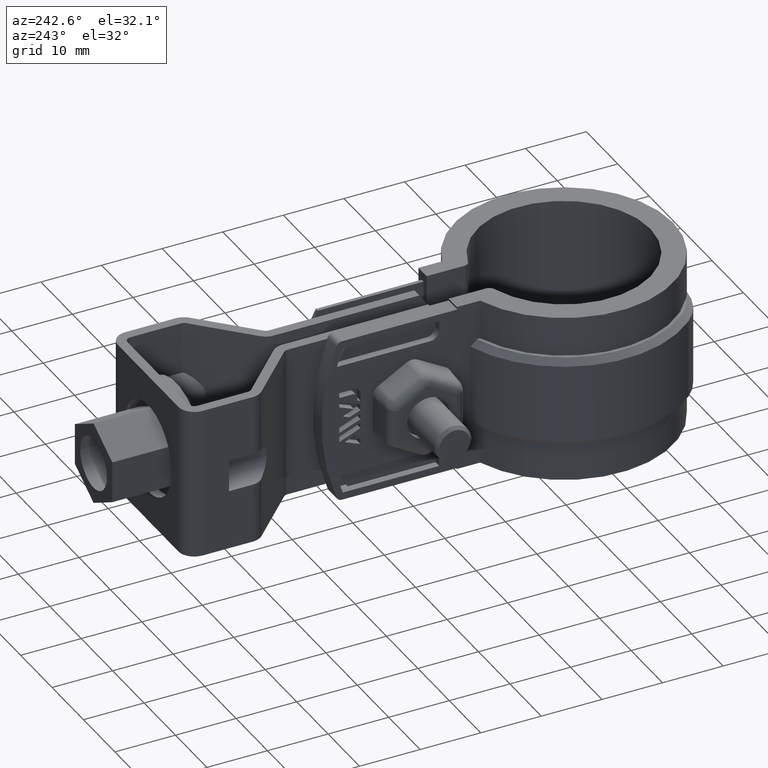
[diagram: clean part render]
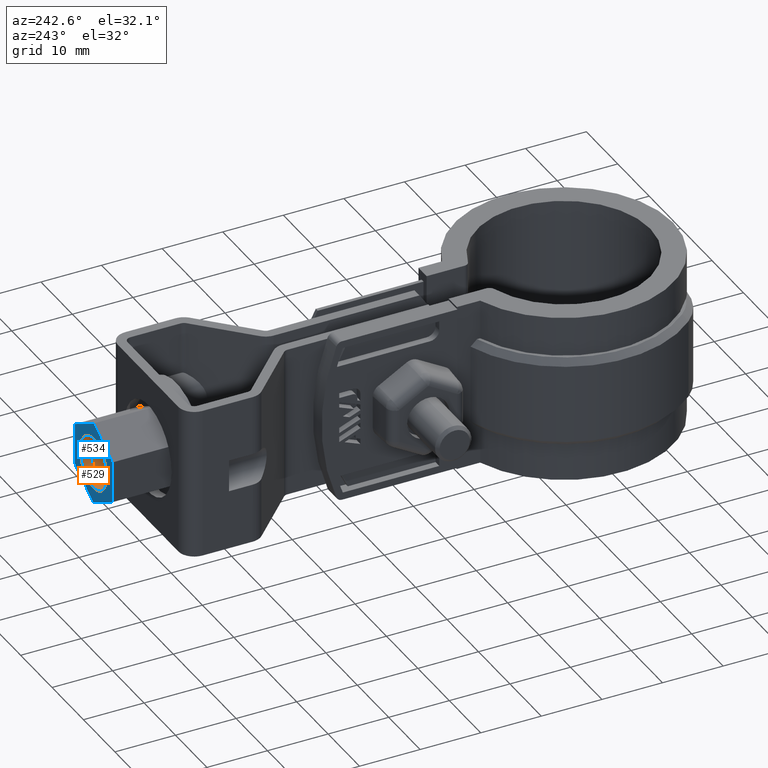
[diagram: same view with the hole feature highlighted: cylindrical wall and planar end face, labeled with their STEP entity ids]
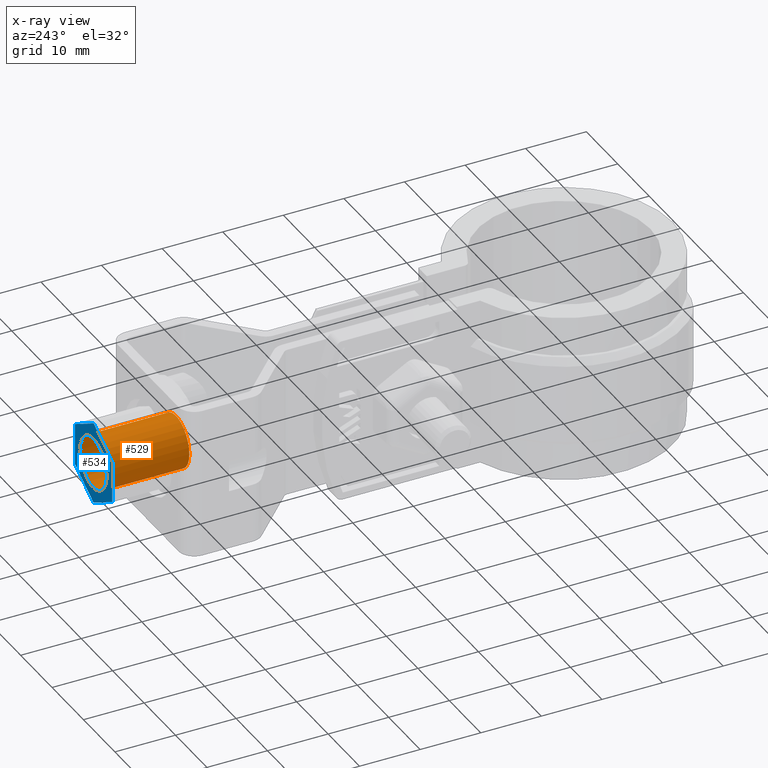
[diagram: x-ray of the same camera — body ghosted, the hole faces saturated]
A machine part, auxiliary view. The highlighted faces form one hole feature of diameter 8.5 mm: the cylindrical wall (entity #529, orange) and its adjacent planar end face (entity #534, blue) — they share a circular edge in the B-rep.
The next image is the same camera in x-ray (body ghosted, the hole faces saturated) — the bore reads through the body.
Wall:
#529 = ADVANCED_FACE( '', ( #1040, #1041 ), #1042, .F. );
#1040 = FACE_OUTER_BOUND( '', #2177, .T. );
#1041 = FACE_OUTER_BOUND( '', #2178, .T. );
#1042 = CYLINDRICAL_SURFACE( '', #2179, 4.25000000000000 );
#2177 = EDGE_LOOP( '', ( #5150 ) );
#2178 = EDGE_LOOP( '', ( #5151 ) );
#2179 = AXIS2_PLACEMENT_3D( '', #5152, #5153, #5154 );
#5150 = ORIENTED_EDGE( '', *, *, #6946, .F. );
#5151 = ORIENTED_EDGE( '', *, *, #6944, .F. );
#5152 = CARTESIAN_POINT( '', ( 1.08331312815083E-007, 59.7519465780768, -12.4999999827252 ) );
#5153 = DIRECTION( '', ( -7.94778667583653E-010, -1.00000000000000, -1.31468003180933E-010 ) );
#5154 = DIRECTION( '', ( 1.00000000000000, -7.94778667588677E-010, 3.82136079749811E-011 ) );
#6944 = EDGE_CURVE( '', #8182, #8182, #8183, .T. );
#6946 = EDGE_CURVE( '', #8186, #8186, #8187, .T. );
#8182 = VERTEX_POINT( '', #11363 );
#8183 = CIRCLE( '', #11364, 4.25000000000000 );
#8186 = VERTEX_POINT( '', #11367 );
#8187 = CIRCLE( '', #11368, 4.25000000000000 );
#11363 = CARTESIAN_POINT( '', ( 4.25000011170912, 64.0019465747311, -12.4999999820040 ) );
#11364 = AXIS2_PLACEMENT_3D( '', #13083, #13084, #13085 );
#11367 = CARTESIAN_POINT( '', ( 4.25000012251811, 77.6019465747311, -12.4999999802160 ) );
#11368 = AXIS2_PLACEMENT_3D( '', #13089, #13090, #13091 );
#13083 = CARTESIAN_POINT( '', ( 1.11709122152339E-007, 64.0019465781089, -12.4999999821664 ) );
#13084 = DIRECTION( '', ( 7.94778667583653E-010, 1.00000000000000, 1.31468003180933E-010 ) );
#13085 = DIRECTION( '', ( 1.00000000000000, -7.94778667588677E-010, 3.82132749080738E-011 ) );
#13089 = CARTESIAN_POINT( '', ( 1.22518112031477E-007, 77.6019465781089, -12.4999999803785 ) );
#13090 = DIRECTION( '', ( -7.94778667583653E-010, -1.00000000000000, -1.31468003180933E-010 ) );
#13091 = DIRECTION( '', ( 1.00000000000000, -7.94778667588677E-010, 3.82136079749811E-011 ) );
End face:
#534 = ADVANCED_FACE( '', ( #1052, #1053 ), #1054, .T. );
#1052 = FACE_BOUND( '', #2189, .T. );
#1053 = FACE_OUTER_BOUND( '', #2190, .T. );
#1054 = PLANE( '', #2191 );
#2189 = EDGE_LOOP( '', ( #5181 ) );
#2190 = EDGE_LOOP( '', ( #5182, #5183, #5184, #5185, #5186, #5187 ) );
#2191 = AXIS2_PLACEMENT_3D( '', #5188, #5189, #5190 );
#5181 = ORIENTED_EDGE( '', *, *, #6946, .T. );
#5182 = ORIENTED_EDGE( '', *, *, #6932, .T. );
#5183 = ORIENTED_EDGE( '', *, *, #6941, .T. );
#5184 = ORIENTED_EDGE( '', *, *, #6943, .T. );
#5185 = ORIENTED_EDGE( '', *, *, #6948, .T. );
#5186 = ORIENTED_EDGE( '', *, *, #6950, .T. );
#5187 = ORIENTED_EDGE( '', *, *, #6951, .T. );
#5188 = CARTESIAN_POINT( '', ( 5.95000012264939, 77.6019465738316, -15.9352340818294 ) );
#5189 = DIRECTION( '', ( 7.94778667583653E-010, 1.00000000000000, 1.31468003180933E-010 ) );
#5190 = DIRECTION( '', ( 0.500000000033094, -2.83534703281139E-010, -0.866025403765332 ) );
#6932 = EDGE_CURVE( '', #8162, #8160, #8163, .T. );
#6941 = EDGE_CURVE( '', #8160, #8176, #8178, .T. );
#6943 = EDGE_CURVE( '', #8176, #8179, #8181, .T. );
#6946 = EDGE_CURVE( '', #8186, #8186, #8187, .T. );
#6948 = EDGE_CURVE( '', #8179, #8188, #8190, .T. );
#6950 = EDGE_CURVE( '', #8188, #8191, #8193, .T. );
#6951 = EDGE_CURVE( '', #8191, #8162, #8194, .T. );
#8160 = VERTEX_POINT( '', #11329 );
#8162 = VERTEX_POINT( '', #11332 );
#8163 = LINE( '', #11333, #11334 );
#8176 = VERTEX_POINT( '', #11353 );
#8178 = LINE( '', #11356, #11357 );
#8179 = VERTEX_POINT( '', #11358 );
#8181 = LINE( '', #11361, #11362 );
#8186 = VERTEX_POINT( '', #11367 );
#8187 = CIRCLE( '', #11368, 4.25000000000000 );
#8188 = VERTEX_POINT( '', #11369 );
#8190 = LINE( '', #11372, #11373 );
#8191 = VERTEX_POINT( '', #11374 );
#8193 = LINE( '', #11377, #11378 );
#8194 = LINE( '', #11379, #11380 );
#11329 = CARTESIAN_POINT( '', ( 5.95000012264939, 77.6019465738316, -15.9352340818294 ) );
#11332 = CARTESIAN_POINT( '', ( 5.95000012238684, 77.6019465729284, -9.06476587847280 ) );
#11333 = CARTESIAN_POINT( '', ( 5.95000012238684, 77.6019465729284, -9.06476587847280 ) );
#11334 = VECTOR( '', #13069, 1000.00000000000 );
#11353 = CARTESIAN_POINT( '', ( 1.22780658158163E-007, 77.6019465790122, -19.3704681837350 ) );
#11356 = CARTESIAN_POINT( '', ( 5.95000012264939, 77.6019465738316, -15.9352340818294 ) );
#11357 = VECTOR( '', #13080, 1000.00000000000 );
#11358 = CARTESIAN_POINT( '', ( -5.94999987735061, 77.6019465832895, -15.9352340822841 ) );
#11361 = CARTESIAN_POINT( '', ( 1.22780659892886E-007, 77.6019465790122, -19.3704681837350 ) );
#11362 = VECTOR( '', #13082, 1000.00000000000 );
#11367 = CARTESIAN_POINT( '', ( 4.25000012251811, 77.6019465747311, -12.4999999802160 ) );
#11368 = AXIS2_PLACEMENT_3D( '', #13089, #13090, #13091 );
#11369 = CARTESIAN_POINT( '', ( -5.94999987761316, 77.6019465823862, -9.06476587892756 ) );
#11372 = CARTESIAN_POINT( '', ( -5.94999987735062, 77.6019465832895, -15.9352340822841 ) );
#11373 = VECTOR( '', #13093, 1000.00000000000 );
#11374 = CARTESIAN_POINT( '', ( 1.22255565037429E-007, 77.6019465772057, -5.62953177702190 ) );
#11377 = CARTESIAN_POINT( '', ( -5.94999987761316, 77.6019465823862, -9.06476587892754 ) );
#11378 = VECTOR( '', #13095, 1000.00000000000 );
#11379 = CARTESIAN_POINT( '', ( 1.22255571108961E-007, 77.6019465772057, -5.62953177702190 ) );
#11380 = VECTOR( '', #13096, 1000.00000000000 );
#13069 = DIRECTION( '', ( 3.82136635906203E-011, 1.31468003150562E-010, -1.00000000000000 ) );
#13080 = DIRECTION( '', ( -0.866025403765332, 7.54032518093023E-010, -0.500000000033094 ) );
#13082 = DIRECTION( '', ( -0.866025403803545, 6.22564514942461E-010, 0.499999999966906 ) );
#13089 = CARTESIAN_POINT( '', ( 1.22518112031477E-007, 77.6019465781089, -12.4999999803785 ) );
#13090 = DIRECTION( '', ( -7.94778667583653E-010, -1.00000000000000, -1.31468003180933E-010 ) );
#13091 = DIRECTION( '', ( 1.00000000000000, -7.94778667588677E-010, 3.82136079749811E-011 ) );
#13093 = DIRECTION( '', ( -3.82132195014105E-011, -1.31468003150562E-010, 1.00000000000000 ) );
#13095 = DIRECTION( '', ( 0.866025403765332, -7.54032518093023E-010, 0.500000000033094 ) );
#13096 = DIRECTION( '', ( 0.866025403803545, -6.22564514942461E-010, -0.499999999966906 ) );